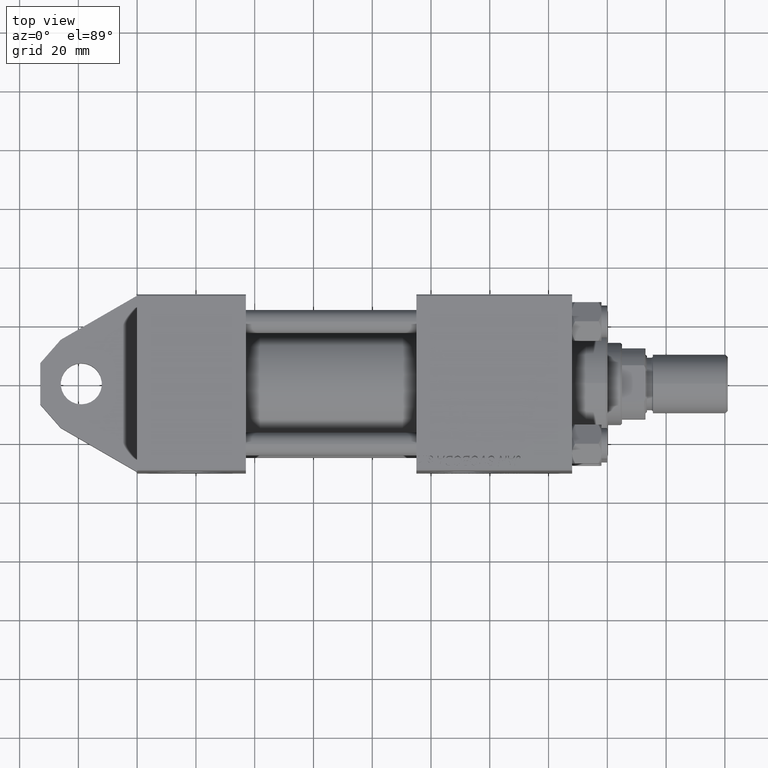
[diagram: clean part render]
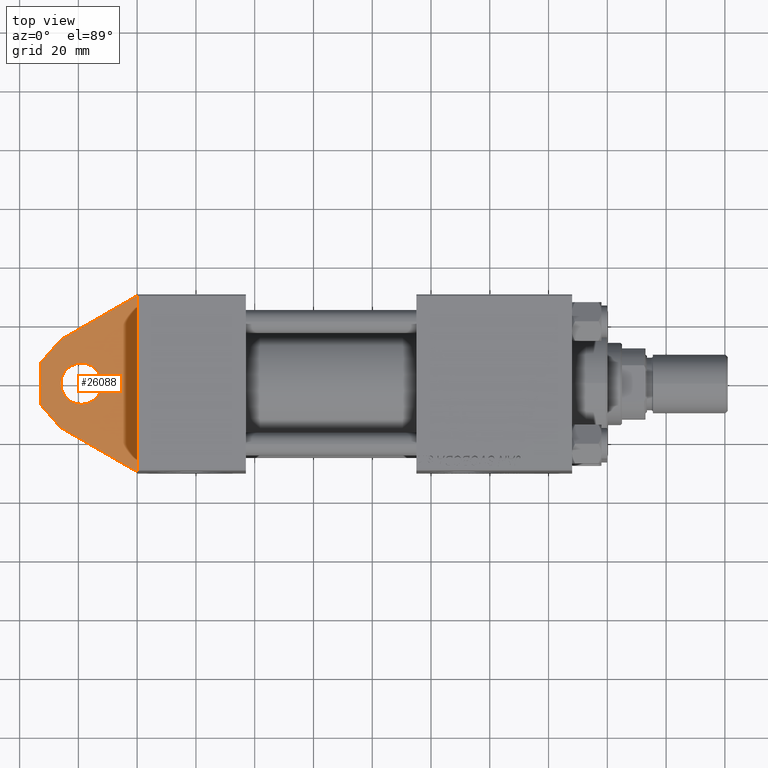
[diagram: same view with one face highlighted and labeled with its STEP entity id]
A machine part, top view. The second image highlights one B-rep face of the part: STEP entity #26088.
In plain terms, the highlighted planar face has unit normal (-0, 0, 1).
Its self-contained STEP definition (entity closure, byte-faithful):
#614 = VECTOR ( 'NONE', #9147, 1000.000000000000000 ) ;
#1365 = ORIENTED_EDGE ( 'NONE', *, *, #12927, .T. ) ;
#2187 = CARTESIAN_POINT ( 'NONE',  ( -19.00000000000000000, 5.000000000000000000, 0.000000000000000000 ) ) ;
#2746 = VECTOR ( 'NONE', #6297, 1000.000000000000000 ) ;
#2867 = DIRECTION ( 'NONE',  ( 0.000000000000000000, 0.000000000000000000, 1.000000000000000000 ) ) ;
#3087 = AXIS2_PLACEMENT_3D ( 'NONE', #32519, #40301, #28746 ) ;
#3931 = EDGE_CURVE ( 'NONE', #9286, #29545, #29147, .T. ) ;
#4920 = CIRCLE ( 'NONE', #31166, 7.000000000000000000 ) ;
#5107 = ORIENTED_EDGE ( 'NONE', *, *, #8775, .T. ) ;
#6297 = DIRECTION ( 'NONE',  ( 0.000000000000000000, 0.000000000000000000, -1.000000000000000000 ) ) ;
#6969 = CARTESIAN_POINT ( 'NONE',  ( 0.000000000000000000, 5.000000000000000000, 29.99999999999999289 ) ) ;
#6975 = CARTESIAN_POINT ( 'NONE',  ( 0.000000000000000000, 5.000000000000000000, -30.00000000000000711 ) ) ;
#6979 = VERTEX_POINT ( 'NONE', #42413 ) ;
#8775 = EDGE_CURVE ( 'NONE', #32473, #9286, #12484, .T. ) ;
#8793 = VERTEX_POINT ( 'NONE', #41636 ) ;
#9147 = DIRECTION ( 'NONE',  ( 0.000000000000000000, 0.000000000000000000, 1.000000000000000000 ) ) ;
#9286 = VERTEX_POINT ( 'NONE', #26126 ) ;
#9462 = EDGE_CURVE ( 'NONE', #27145, #8793, #10219, .T. ) ;
#9494 = VECTOR ( 'NONE', #11331, 999.9999999999998863 ) ;
#10219 = CIRCLE ( 'NONE', #28194, 7.000000000000000000 ) ;
#10796 = ORIENTED_EDGE ( 'NONE', *, *, #45309, .T. ) ;
#11331 = DIRECTION ( 'NONE',  ( 0.8660254037844363761, 0.000000000000000000, 0.5000000000000039968 ) ) ;
#11823 = CARTESIAN_POINT ( 'NONE',  ( -26.00000000000000355, 5.000000000000000000, 14.98889300106956135 ) ) ;
#12484 = LINE ( 'NONE', #16702, #31901 ) ;
#12927 = EDGE_CURVE ( 'NONE', #6979, #19822, #36816, .T. ) ;
#13874 = EDGE_LOOP ( 'NONE', ( #45417, #33094 ) ) ;
#14263 = CARTESIAN_POINT ( 'NONE',  ( 0.000000000000000000, 5.000000000000000000, 29.99999999999999289 ) ) ;
#14491 = EDGE_LOOP ( 'NONE', ( #1365, #23019, #39008, #5107, #18473, #10796 ) ) ;
#16536 = DIRECTION ( 'NONE',  ( 0.000000000000000000, 1.000000000000000000, 0.000000000000000000 ) ) ;
#16702 = CARTESIAN_POINT ( 'NONE',  ( -26.00000000000000355, 5.000000000000000000, -14.98889300106956135 ) ) ;
#17091 = LINE ( 'NONE', #14263, #2746 ) ;
#18473 = ORIENTED_EDGE ( 'NONE', *, *, #3931, .T. ) ;
#19822 = VERTEX_POINT ( 'NONE', #11823 ) ;
#21937 = PLANE ( 'NONE',  #3087 ) ;
#22459 = CARTESIAN_POINT ( 'NONE',  ( -33.00000000000000000, 5.000000000000000000, 7.000000000000000000 ) ) ;
#23019 = ORIENTED_EDGE ( 'NONE', *, *, #36476, .T. ) ;
#26088 = ADVANCED_FACE ( 'NONE', ( #32297, #35826 ), #21937, .T. ) ;
#26126 = CARTESIAN_POINT ( 'NONE',  ( -26.00000000000000355, 5.000000000000000000, -14.98889300106956135 ) ) ;
#26325 = LINE ( 'NONE', #36449, #9494 ) ;
#26957 = LINE ( 'NONE', #41357, #614 ) ;
#27145 = VERTEX_POINT ( 'NONE', #33425 ) ;
#28194 = AXIS2_PLACEMENT_3D ( 'NONE', #2187, #16536, #30851 ) ;
#28746 = DIRECTION ( 'NONE',  ( 0.000000000000000000, -0.000000000000000000, 1.000000000000000000 ) ) ;
#29147 = LINE ( 'NONE', #33160, #29638 ) ;
#29545 = VERTEX_POINT ( 'NONE', #41438 ) ;
#29638 = VECTOR ( 'NONE', #32921, 1000.000000000000000 ) ;
#30851 = DIRECTION ( 'NONE',  ( 0.000000000000000000, 0.000000000000000000, 1.000000000000000000 ) ) ;
#31166 = AXIS2_PLACEMENT_3D ( 'NONE', #39277, #35070, #2867 ) ;
#31790 = EDGE_CURVE ( 'NONE', #8793, #27145, #4920, .T. ) ;
#31901 = VECTOR ( 'NONE', #41411, 999.9999999999998863 ) ;
#32297 = FACE_BOUND ( 'NONE', #13874, .T. ) ;
#32473 = VERTEX_POINT ( 'NONE', #6975 ) ;
#32519 = CARTESIAN_POINT ( 'NONE',  ( 0.000000000000000000, 5.000000000000000000, 0.000000000000000000 ) ) ;
#32788 = VECTOR ( 'NONE', #33999, 1000.000000000000000 ) ;
#32921 = DIRECTION ( 'NONE',  ( -0.6590226651366694055, -0.000000000000000000, 0.7521230795795068591 ) ) ;
#33094 = ORIENTED_EDGE ( 'NONE', *, *, #31790, .F. ) ;
#33160 = CARTESIAN_POINT ( 'NONE',  ( -33.00000000000000000, 5.000000000000000000, -7.000000000000000000 ) ) ;
#33425 = CARTESIAN_POINT ( 'NONE',  ( -19.00000000000000000, 5.000000000000000000, 7.000000000000000000 ) ) ;
#33999 = DIRECTION ( 'NONE',  ( 0.6590226651366694055, 0.000000000000000000, 0.7521230795795068591 ) ) ;
#35070 = DIRECTION ( 'NONE',  ( 0.000000000000000000, 1.000000000000000000, 0.000000000000000000 ) ) ;
#35826 = FACE_OUTER_BOUND ( 'NONE', #14491, .T. ) ;
#36449 = CARTESIAN_POINT ( 'NONE',  ( -26.00000000000000355, 5.000000000000000000, 14.98889300106956135 ) ) ;
#36476 = EDGE_CURVE ( 'NONE', #19822, #44381, #26325, .T. ) ;
#36816 = LINE ( 'NONE', #22459, #32788 ) ;
#37342 = EDGE_CURVE ( 'NONE', #44381, #32473, #17091, .T. ) ;
#39008 = ORIENTED_EDGE ( 'NONE', *, *, #37342, .T. ) ;
#39277 = CARTESIAN_POINT ( 'NONE',  ( -19.00000000000000000, 5.000000000000000000, 0.000000000000000000 ) ) ;
#40301 = DIRECTION ( 'NONE',  ( -0.000000000000000000, 1.000000000000000000, 0.000000000000000000 ) ) ;
#41357 = CARTESIAN_POINT ( 'NONE',  ( -33.00000000000000000, 5.000000000000000000, -7.000000000000000000 ) ) ;
#41411 = DIRECTION ( 'NONE',  ( -0.8660254037844361541, -0.000000000000000000, 0.5000000000000043299 ) ) ;
#41438 = CARTESIAN_POINT ( 'NONE',  ( -33.00000000000000000, 5.000000000000000000, -7.000000000000000000 ) ) ;
#41636 = CARTESIAN_POINT ( 'NONE',  ( -19.00000000000000000, 5.000000000000000000, -7.000000000000000000 ) ) ;
#42413 = CARTESIAN_POINT ( 'NONE',  ( -33.00000000000000000, 5.000000000000000000, 7.000000000000000000 ) ) ;
#44381 = VERTEX_POINT ( 'NONE', #6969 ) ;
#45309 = EDGE_CURVE ( 'NONE', #29545, #6979, #26957, .T. ) ;
#45417 = ORIENTED_EDGE ( 'NONE', *, *, #9462, .F. ) ;